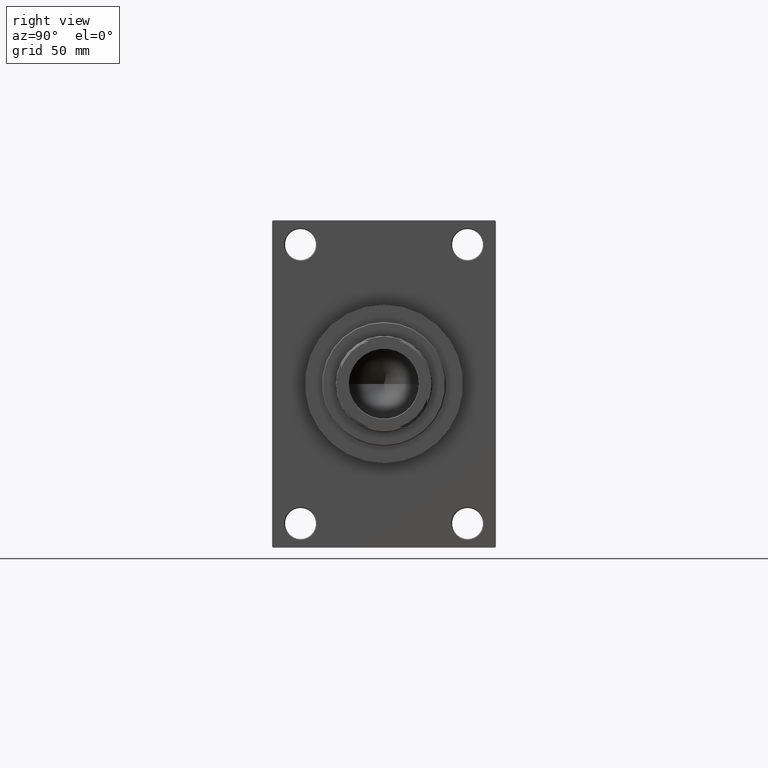
[diagram: clean part render]
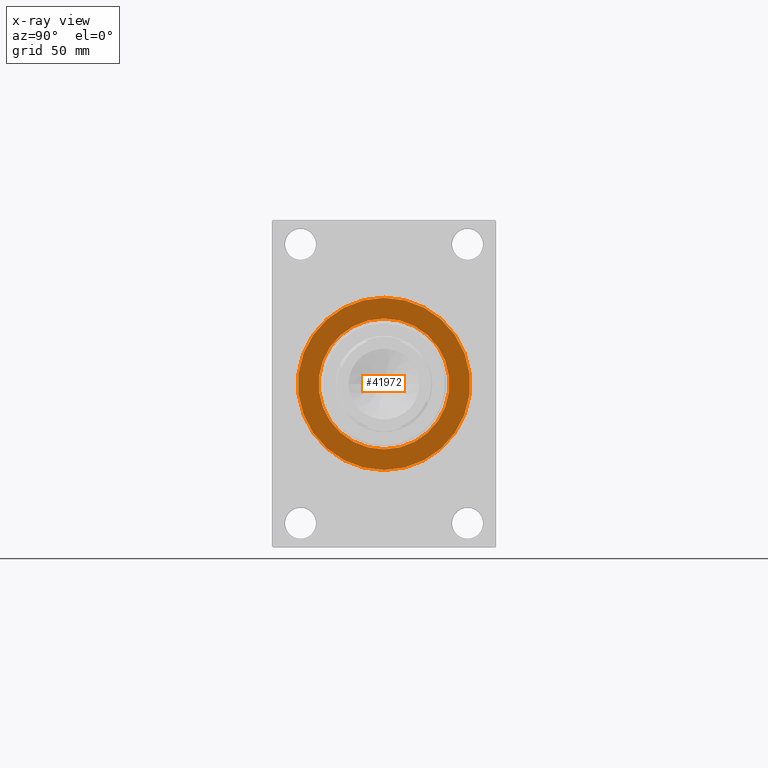
[diagram: x-ray — body ghosted, one internal face saturated and labeled with its STEP entity id]
A machine part, right view, then the same camera in x-ray: the body is ghosted and one INTERNAL B-rep face — a face not visible from any outside direction — is saturated and labeled: STEP entity #41972.
In plain terms, the highlighted planar face has unit normal (-1, 0, 0).
Its self-contained STEP definition (entity closure, byte-faithful):
#542 = CARTESIAN_POINT ( 'NONE',  ( 229.9999999999999716, 0.000000000000000000, 0.000000000000000000 ) ) ;
#1371 = CIRCLE ( 'NONE', #46111, 38.00000000000000000 ) ;
#1912 = CARTESIAN_POINT ( 'NONE',  ( 229.9999999999999716, -2.602085213965210642E-15, 50.00000000000000000 ) ) ;
#3486 = VERTEX_POINT ( 'NONE', #1912 ) ;
#3853 = DIRECTION ( 'NONE',  ( -1.000000000000000000, 0.000000000000000000, -0.000000000000000000 ) ) ;
#4621 = CIRCLE ( 'NONE', #31623, 50.00000000000000000 ) ;
#6067 = VERTEX_POINT ( 'NONE', #21087 ) ;
#7265 = EDGE_CURVE ( 'NONE', #31819, #40471, #1371, .T. ) ;
#7484 = DIRECTION ( 'NONE',  ( 0.000000000000000000, 0.000000000000000000, -1.000000000000000000 ) ) ;
#7728 = EDGE_LOOP ( 'NONE', ( #11263, #10335 ) ) ;
#8834 = DIRECTION ( 'NONE',  ( 0.000000000000000000, 0.000000000000000000, 1.000000000000000000 ) ) ;
#9948 = EDGE_CURVE ( 'NONE', #40471, #31819, #12233, .T. ) ;
#10335 = ORIENTED_EDGE ( 'NONE', *, *, #9948, .F. ) ;
#11263 = ORIENTED_EDGE ( 'NONE', *, *, #7265, .F. ) ;
#11764 = CARTESIAN_POINT ( 'NONE',  ( 229.9999999999999716, 0.000000000000000000, 0.000000000000000000 ) ) ;
#11900 = DIRECTION ( 'NONE',  ( -1.000000000000000000, 0.000000000000000000, -0.000000000000000000 ) ) ;
#12233 = CIRCLE ( 'NONE', #36152, 38.00000000000000000 ) ;
#12712 = CIRCLE ( 'NONE', #32776, 50.00000000000000000 ) ;
#12832 = DIRECTION ( 'NONE',  ( 0.000000000000000000, 0.000000000000000000, -1.000000000000000000 ) ) ;
#16378 = CARTESIAN_POINT ( 'NONE',  ( 229.9999999999999716, 0.000000000000000000, -38.00000000000000000 ) ) ;
#19149 = DIRECTION ( 'NONE',  ( 0.000000000000000000, 0.000000000000000000, 1.000000000000000000 ) ) ;
#20802 = CARTESIAN_POINT ( 'NONE',  ( 229.9999999999999716, -2.602085213965210642E-15, 0.000000000000000000 ) ) ;
#21087 = CARTESIAN_POINT ( 'NONE',  ( 229.9999999999999716, 3.521148781771555838E-15, -50.00000000000000000 ) ) ;
#21274 = ORIENTED_EDGE ( 'NONE', *, *, #26527, .F. ) ;
#23034 = ORIENTED_EDGE ( 'NONE', *, *, #42795, .F. ) ;
#26527 = EDGE_CURVE ( 'NONE', #6067, #3486, #4621, .T. ) ;
#28983 = FACE_OUTER_BOUND ( 'NONE', #44229, .T. ) ;
#31623 = AXIS2_PLACEMENT_3D ( 'NONE', #20802, #45896, #12832 ) ;
#31819 = VERTEX_POINT ( 'NONE', #16378 ) ;
#32742 = AXIS2_PLACEMENT_3D ( 'NONE', #40072, #3853, #33082 ) ;
#32776 = AXIS2_PLACEMENT_3D ( 'NONE', #43049, #36701, #7484 ) ;
#33082 = DIRECTION ( 'NONE',  ( -0.000000000000000000, 0.000000000000000000, 1.000000000000000000 ) ) ;
#36152 = AXIS2_PLACEMENT_3D ( 'NONE', #542, #11900, #19149 ) ;
#36701 = DIRECTION ( 'NONE',  ( 1.000000000000000000, 0.000000000000000000, 0.000000000000000000 ) ) ;
#37802 = CARTESIAN_POINT ( 'NONE',  ( 229.9999999999999716, 4.653657836759941941E-15, 38.00000000000000000 ) ) ;
#40072 = CARTESIAN_POINT ( 'NONE',  ( 229.9999999999999716, 0.000000000000000000, 0.000000000000000000 ) ) ;
#40471 = VERTEX_POINT ( 'NONE', #37802 ) ;
#40540 = FACE_BOUND ( 'NONE', #7728, .T. ) ;
#41905 = DIRECTION ( 'NONE',  ( -1.000000000000000000, 0.000000000000000000, -0.000000000000000000 ) ) ;
#41972 = ADVANCED_FACE ( 'NONE', ( #40540, #28983 ), #43692, .T. ) ;
#42795 = EDGE_CURVE ( 'NONE', #3486, #6067, #12712, .T. ) ;
#43049 = CARTESIAN_POINT ( 'NONE',  ( 229.9999999999999716, -2.602085213965210642E-15, 0.000000000000000000 ) ) ;
#43692 = PLANE ( 'NONE',  #32742 ) ;
#44229 = EDGE_LOOP ( 'NONE', ( #23034, #21274 ) ) ;
#45896 = DIRECTION ( 'NONE',  ( 1.000000000000000000, 0.000000000000000000, 0.000000000000000000 ) ) ;
#46111 = AXIS2_PLACEMENT_3D ( 'NONE', #11764, #41905, #8834 ) ;